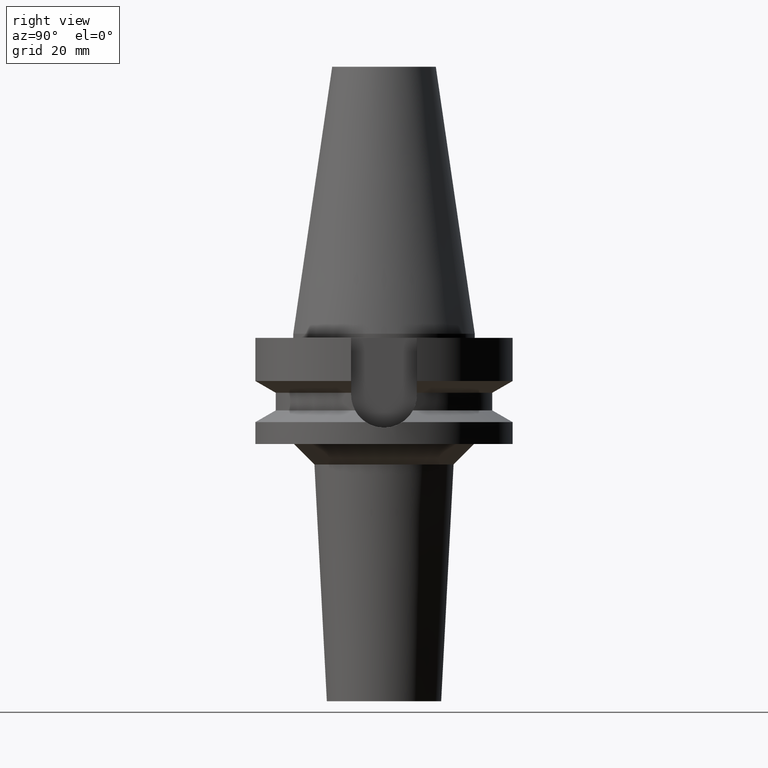
[diagram: clean part render]
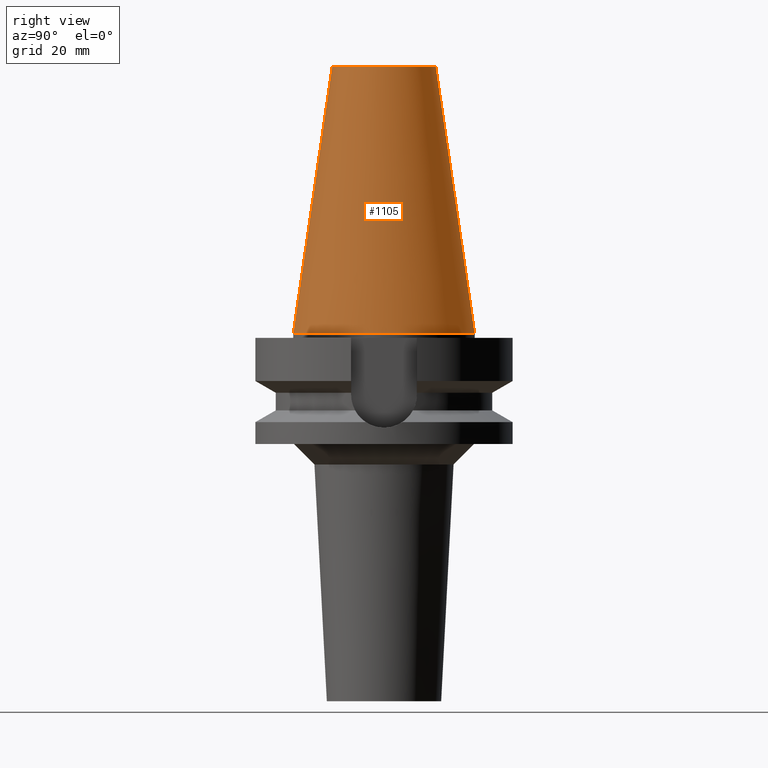
[diagram: same view with one face highlighted and labeled with its STEP entity id]
A machine part, right view. The second image highlights one B-rep face of the part: STEP entity #1105.
In plain terms, the highlighted conical surface has half-angle 8.297 deg.
Its self-contained STEP definition (entity closure, byte-faithful):
#26=CARTESIAN_POINT('',(0.E0,1.625106302469E-14,6.54E1));
#27=DIRECTION('',(0.E0,0.E0,-1.E0));
#28=DIRECTION('',(0.E0,1.E0,0.E0));
#29=AXIS2_PLACEMENT_3D('',#26,#27,#28);
#50=DIRECTION('',(0.E0,-1.443043893540E-1,-9.895333461856E-1));
#51=VECTOR('',#50,6.609175956738E1);
#52=CARTESIAN_POINT('',(0.E0,-1.268766899430E1,6.54E1));
#53=LINE('',#52,#51);
#65=DIRECTION('',(0.E0,1.443043893540E-1,-9.895333461856E-1));
#66=VECTOR('',#65,6.609175956738E1);
#67=CARTESIAN_POINT('',(0.E0,1.268766899430E1,6.54E1));
#68=LINE('',#67,#66);
#72=CARTESIAN_POINT('',(0.E0,1.625106302469E-14,2.842170943040E-14));
#73=DIRECTION('',(0.E0,0.E0,-1.E0));
#74=DIRECTION('',(0.E0,1.E0,0.E0));
#75=AXIS2_PLACEMENT_3D('',#72,#73,#74);
#919=CARTESIAN_POINT('',(0.E0,-1.268766899430E1,6.54E1));
#920=CARTESIAN_POINT('',(0.E0,1.268766899430E1,6.54E1));
#921=VERTEX_POINT('',#919);
#922=VERTEX_POINT('',#920);
#1048=CARTESIAN_POINT('',(0.E0,2.2225E1,6.394884621841E-14));
#1049=VERTEX_POINT('',#1048);
#1050=CARTESIAN_POINT('',(0.E0,-2.2225E1,6.394884621841E-14));
#1051=VERTEX_POINT('',#1050);
#1093=CARTESIAN_POINT('',(0.E0,1.625106302469E-14,3.27E1));
#1094=DIRECTION('',(0.E0,0.E0,-1.E0));
#1095=DIRECTION('',(0.E0,-1.E0,0.E0));
#1096=AXIS2_PLACEMENT_3D('',#1093,#1094,#1095);
#1097=CONICAL_SURFACE('',#1096,1.745633449715E1,8.297E0);
#1098=ORIENTED_EDGE('',*,*,#1083,.T.);
#1100=ORIENTED_EDGE('',*,*,#1099,.T.);
#1101=ORIENTED_EDGE('',*,*,#1086,.F.);
#1102=ORIENTED_EDGE('',*,*,#1067,.F.);
#1103=EDGE_LOOP('',(#1098,#1100,#1101,#1102));
#1104=FACE_OUTER_BOUND('',#1103,.F.);
#30=CIRCLE('',#29,1.268766899430E1);
#76=CIRCLE('',#75,2.2225E1);
#1067=EDGE_CURVE('',#922,#921,#30,.T.);
#1083=EDGE_CURVE('',#922,#1049,#68,.T.);
#1086=EDGE_CURVE('',#921,#1051,#53,.T.);
#1099=EDGE_CURVE('',#1049,#1051,#76,.T.);
#1105=ADVANCED_FACE('',(#1104),#1097,.T.);